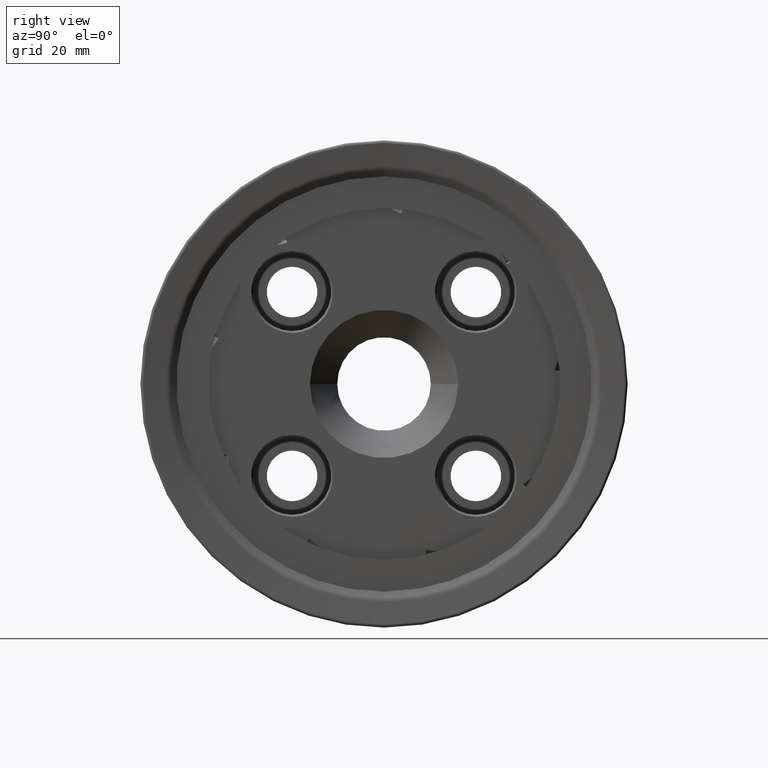
[diagram: clean part render]
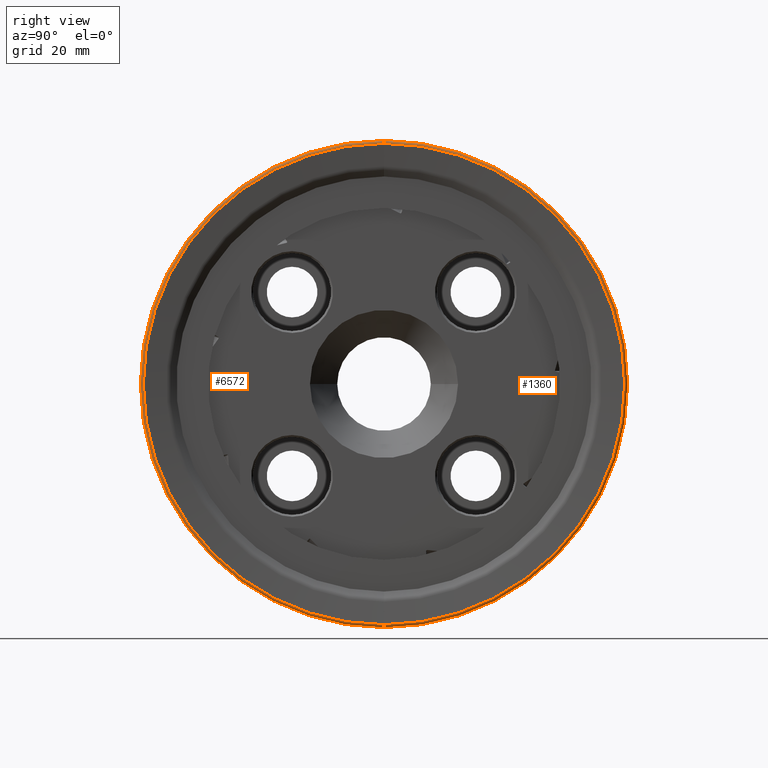
[diagram: same view with one multi-face feature highlighted, each face labeled with its STEP entity id]
A machine part, right view. The highlighted faces form ONE feature: a constant-radius fillet chain: 2 tangent blend faces with common blend radius 0.6745 mm. The faces share edges in the B-rep.
Their STEP definitions:
[1] entity #1360 (Torus):
#661 = ORIENTED_EDGE ( 'NONE', *, *, #1168, .T. ) ;
#684 = ORIENTED_EDGE ( 'NONE', *, *, #1173, .T. ) ;
#692 = ORIENTED_EDGE ( 'NONE', *, *, #1188, .F. ) ;
#750 = ORIENTED_EDGE ( 'NONE', *, *, #1181, .F. ) ;
#1168 = EDGE_CURVE ( 'NONE', #16600, #16599, #8598, .T. ) ;
#1173 = EDGE_CURVE ( 'NONE', #16599, #16606, #8600, .T. ) ;
#1181 = EDGE_CURVE ( 'NONE', #16607, #16606, #8606, .T. ) ;
#1188 = EDGE_CURVE ( 'NONE', #16600, #16607, #8607, .T. ) ;
#1360 = ADVANCED_FACE ( 'NONE', ( #8689 ), #8694, .T. ) ;
#1775 = DIRECTION ( 'NONE',  ( 1.000000000000000000, -0.0000000000000000000, -0.0000000000000000000 ) ) ;
#1776 = CARTESIAN_POINT ( 'NONE',  ( 1.075453650493910500, 0.0000000000000000000, 0.0000000000000000000 ) ) ;
#1778 = DIRECTION ( 'NONE',  ( 0.0000000000000000000, 0.0000000000000000000, -1.000000000000000000 ) ) ;
#7734 = EDGE_LOOP ( 'NONE', ( #661, #684, #750, #692 ) ) ;
#7782 = CARTESIAN_POINT ( 'NONE',  ( 1.075453650493911000, 7.654042494670956200E-015, 62.49999999999998600 ) ) ;
#7784 = CARTESIAN_POINT ( 'NONE',  ( 1.075453650493911000, 0.0000000000000000000, -62.49999999999998600 ) ) ;
#7795 = CARTESIAN_POINT ( 'NONE',  ( 1.746340405032740700, 7.562841122689600200E-015, 61.75528428241631200 ) ) ;
#7797 = CARTESIAN_POINT ( 'NONE',  ( 1.746340405032740700, 0.0000000000000000000, -61.75528428241631200 ) ) ;
#8598 = CIRCLE ( 'NONE', #9574, 62.49999999999998600 ) ;
#8600 = CIRCLE ( 'NONE', #9578, 0.6745463495061304600 ) ;
#8606 = CIRCLE ( 'NONE', #9581, 61.75528428241631200 ) ;
#8607 = CIRCLE ( 'NONE', #9580, 0.6745463495061304600 ) ;
#8689 = FACE_OUTER_BOUND ( 'NONE', #7734, .T. ) ;
#8694 = TOROIDAL_SURFACE ( 'NONE', #9617, 61.82545365049386300, 0.6745463495061313500 ) ;
#9574 = AXIS2_PLACEMENT_3D ( 'NONE', #16878, #16906, #16905 ) ;
#9578 = AXIS2_PLACEMENT_3D ( 'NONE', #16884, #15940, #15939 ) ;
#9580 = AXIS2_PLACEMENT_3D ( 'NONE', #15484, #15550, #15543 ) ;
#9581 = AXIS2_PLACEMENT_3D ( 'NONE', #15537, #15480, #15483 ) ;
#9617 = AXIS2_PLACEMENT_3D ( 'NONE', #1776, #1775, #1778 ) ;
#15480 = DIRECTION ( 'NONE',  ( 1.000000000000000000, -0.0000000000000000000, -0.0000000000000000000 ) ) ;
#15483 = DIRECTION ( 'NONE',  ( 0.0000000000000000000, 0.0000000000000000000, -1.000000000000000000 ) ) ;
#15484 = CARTESIAN_POINT ( 'NONE',  ( 1.075453650493910500, 0.0000000000000000000, -61.82545365049386300 ) ) ;
#15537 = CARTESIAN_POINT ( 'NONE',  ( 1.746340405032740700, 0.0000000000000000000, 0.0000000000000000000 ) ) ;
#15543 = DIRECTION ( 'NONE',  ( 0.0000000000000000000, 0.0000000000000000000, -1.000000000000000000 ) ) ;
#15550 = DIRECTION ( 'NONE',  ( -0.0000000000000000000, -1.000000000000000000, -0.0000000000000000000 ) ) ;
#15939 = DIRECTION ( 'NONE',  ( 0.0000000000000000000, 1.224646799147363800E-016, 1.000000000000000000 ) ) ;
#15940 = DIRECTION ( 'NONE',  ( 0.0000000000000000000, 1.000000000000000000, -1.224646799147353200E-016 ) ) ;
#16599 = VERTEX_POINT ( 'NONE', #7782 ) ;
#16600 = VERTEX_POINT ( 'NONE', #7784 ) ;
#16606 = VERTEX_POINT ( 'NONE', #7795 ) ;
#16607 = VERTEX_POINT ( 'NONE', #7797 ) ;
#16878 = CARTESIAN_POINT ( 'NONE',  ( 1.075453650493911000, 0.0000000000000000000, 0.0000000000000000000 ) ) ;
#16884 = CARTESIAN_POINT ( 'NONE',  ( 1.075453650493910500, 7.571434391891035300E-015, 61.82545365049386300 ) ) ;
#16905 = DIRECTION ( 'NONE',  ( 0.0000000000000000000, 0.0000000000000000000, -1.000000000000000000 ) ) ;
#16906 = DIRECTION ( 'NONE',  ( 1.000000000000000000, -0.0000000000000000000, -0.0000000000000000000 ) ) ;
[2] entity #6572 (Torus):
#1154 = AXIS2_PLACEMENT_3D ( 'NONE', #16679, #16678, #16847 ) ;
#1155 = EDGE_CURVE ( 'NONE', #16606, #16607, #8593, .T. ) ;
#1173 = EDGE_CURVE ( 'NONE', #16599, #16606, #8600, .T. ) ;
#1188 = EDGE_CURVE ( 'NONE', #16600, #16607, #8607, .T. ) ;
#2066 = AXIS2_PLACEMENT_3D ( 'NONE', #15196, #15195, #15198 ) ;
#2477 = FACE_OUTER_BOUND ( 'NONE', #8502, .T. ) ;
#2486 = TOROIDAL_SURFACE ( 'NONE', #2066, 61.82545365049386300, 0.6745463495061313500 ) ;
#4363 = EDGE_CURVE ( 'NONE', #16599, #16600, #10336, .T. ) ;
#6572 = ADVANCED_FACE ( 'NONE', ( #2477 ), #2486, .T. ) ;
#7598 = ORIENTED_EDGE ( 'NONE', *, *, #1173, .F. ) ;
#7600 = ORIENTED_EDGE ( 'NONE', *, *, #4363, .T. ) ;
#7602 = ORIENTED_EDGE ( 'NONE', *, *, #1188, .T. ) ;
#7605 = ORIENTED_EDGE ( 'NONE', *, *, #1155, .F. ) ;
#7782 = CARTESIAN_POINT ( 'NONE',  ( 1.075453650493911000, 7.654042494670956200E-015, 62.49999999999998600 ) ) ;
#7784 = CARTESIAN_POINT ( 'NONE',  ( 1.075453650493911000, 0.0000000000000000000, -62.49999999999998600 ) ) ;
#7795 = CARTESIAN_POINT ( 'NONE',  ( 1.746340405032740700, 7.562841122689600200E-015, 61.75528428241631200 ) ) ;
#7797 = CARTESIAN_POINT ( 'NONE',  ( 1.746340405032740700, 0.0000000000000000000, -61.75528428241631200 ) ) ;
#8502 = EDGE_LOOP ( 'NONE', ( #7598, #7600, #7602, #7605 ) ) ;
#8593 = CIRCLE ( 'NONE', #1154, 61.75528428241631200 ) ;
#8600 = CIRCLE ( 'NONE', #9578, 0.6745463495061304600 ) ;
#8607 = CIRCLE ( 'NONE', #9580, 0.6745463495061304600 ) ;
#9578 = AXIS2_PLACEMENT_3D ( 'NONE', #16884, #15940, #15939 ) ;
#9580 = AXIS2_PLACEMENT_3D ( 'NONE', #15484, #15550, #15543 ) ;
#10034 = AXIS2_PLACEMENT_3D ( 'NONE', #11876, #11877, #11878 ) ;
#10336 = CIRCLE ( 'NONE', #10034, 62.49999999999998600 ) ;
#11876 = CARTESIAN_POINT ( 'NONE',  ( 1.075453650493911000, 0.0000000000000000000, 0.0000000000000000000 ) ) ;
#11877 = DIRECTION ( 'NONE',  ( 1.000000000000000000, -0.0000000000000000000, -0.0000000000000000000 ) ) ;
#11878 = DIRECTION ( 'NONE',  ( 0.0000000000000000000, 0.0000000000000000000, -1.000000000000000000 ) ) ;
#15195 = DIRECTION ( 'NONE',  ( 1.000000000000000000, -0.0000000000000000000, -0.0000000000000000000 ) ) ;
#15196 = CARTESIAN_POINT ( 'NONE',  ( 1.075453650493910500, 0.0000000000000000000, 0.0000000000000000000 ) ) ;
#15198 = DIRECTION ( 'NONE',  ( 0.0000000000000000000, 0.0000000000000000000, -1.000000000000000000 ) ) ;
#15484 = CARTESIAN_POINT ( 'NONE',  ( 1.075453650493910500, 0.0000000000000000000, -61.82545365049386300 ) ) ;
#15543 = DIRECTION ( 'NONE',  ( 0.0000000000000000000, 0.0000000000000000000, -1.000000000000000000 ) ) ;
#15550 = DIRECTION ( 'NONE',  ( -0.0000000000000000000, -1.000000000000000000, -0.0000000000000000000 ) ) ;
#15939 = DIRECTION ( 'NONE',  ( 0.0000000000000000000, 1.224646799147363800E-016, 1.000000000000000000 ) ) ;
#15940 = DIRECTION ( 'NONE',  ( 0.0000000000000000000, 1.000000000000000000, -1.224646799147353200E-016 ) ) ;
#16599 = VERTEX_POINT ( 'NONE', #7782 ) ;
#16600 = VERTEX_POINT ( 'NONE', #7784 ) ;
#16606 = VERTEX_POINT ( 'NONE', #7795 ) ;
#16607 = VERTEX_POINT ( 'NONE', #7797 ) ;
#16678 = DIRECTION ( 'NONE',  ( 1.000000000000000000, -0.0000000000000000000, -0.0000000000000000000 ) ) ;
#16679 = CARTESIAN_POINT ( 'NONE',  ( 1.746340405032740700, 0.0000000000000000000, 0.0000000000000000000 ) ) ;
#16847 = DIRECTION ( 'NONE',  ( 0.0000000000000000000, 0.0000000000000000000, -1.000000000000000000 ) ) ;
#16884 = CARTESIAN_POINT ( 'NONE',  ( 1.075453650493910500, 7.571434391891035300E-015, 61.82545365049386300 ) ) ;